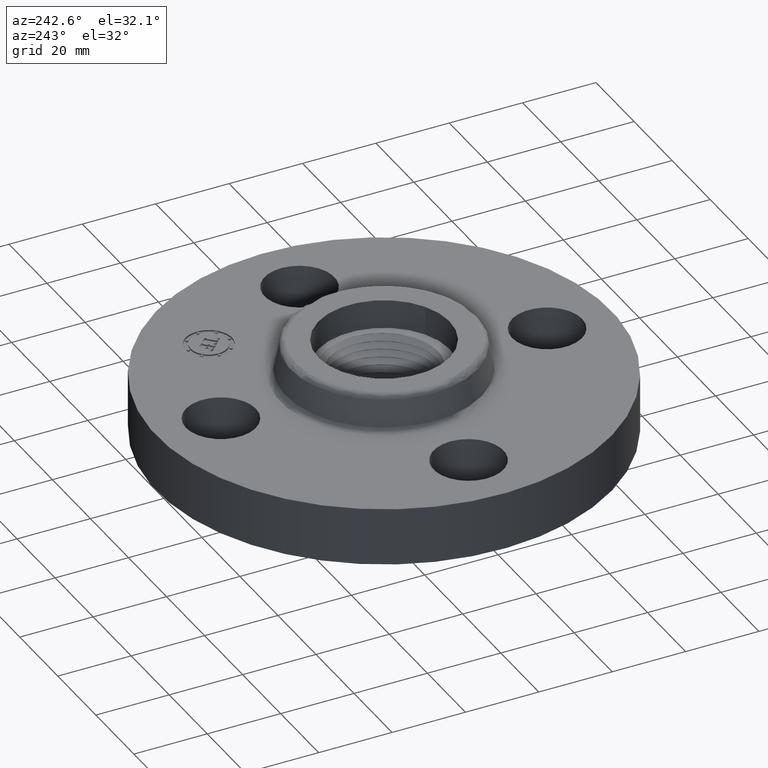
[diagram: clean part render]
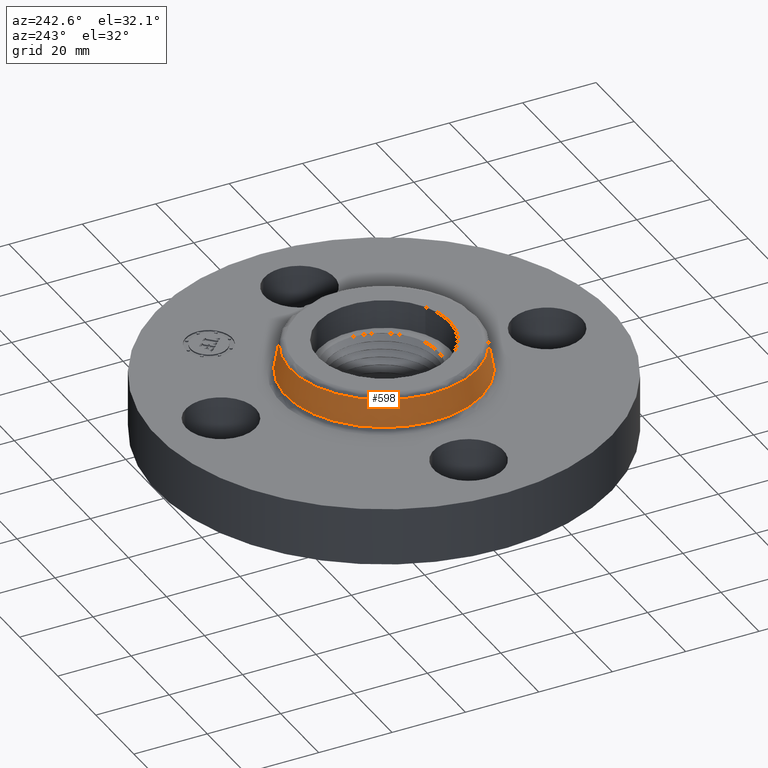
[diagram: same view with one face highlighted and labeled with its STEP entity id]
A machine part, auxiliary view. The second image highlights one B-rep face of the part: STEP entity #598.
In plain terms, the highlighted conical surface has half-angle 10 deg.
Its self-contained STEP definition (entity closure, byte-faithful):
#546=AXIS2_PLACEMENT_3D('Circle Axis2P3D',#544,#545,$) ;
#559=AXIS2_PLACEMENT_3D('Cone Axis2P3D',#556,#557,#558) ;
#589=AXIS2_PLACEMENT_3D('Circle Axis2P3D',#587,#588,$) ;
#517=CARTESIAN_POINT('Vertex',(0.503999699235,0.922565261197,0.669581109343)) ;
#524=CARTESIAN_POINT('Vertex',(-0.503999699235,-0.922565261197,0.669581109343)) ;
#544=CARTESIAN_POINT('Axis2P3D Location',(0.,0.,0.669581109343)) ;
#556=CARTESIAN_POINT('Axis2P3D Location',(0.,0.,0.950418890664)) ;
#561=CARTESIAN_POINT('Line Origine',(0.49212929596,0.90083663375,0.810000000003)) ;
#565=CARTESIAN_POINT('Vertex',(0.480258892685,0.879108006303,0.950418890664)) ;
#572=CARTESIAN_POINT('Vertex',(-0.480258892685,-0.879108006303,0.950418890664)) ;
#575=CARTESIAN_POINT('Line Origine',(-0.49212929596,-0.90083663375,0.810000000003)) ;
#587=CARTESIAN_POINT('Axis2P3D Location',(0.,0.,0.950418890664)) ;
#545=DIRECTION('Axis2P3D Direction',(0.,0.,-0.0393700787402)) ;
#557=DIRECTION('Axis2P3D Direction',(0.,0.,-0.0393700787402)) ;
#558=DIRECTION('Axis2P3D XDirection',(-0.0188750212049,-0.0345504945626,0.)) ;
#562=DIRECTION('Vector Direction',(0.00327761303565,0.00599963041829,-0.03877195878)) ;
#576=DIRECTION('Vector Direction',(-0.00327761303565,-0.00599963041829,-0.03877195878)) ;
#588=DIRECTION('Axis2P3D Direction',(0.,0.,-0.0393700787402)) ;
#563=VECTOR('Line Direction',#562,0.0393700787402) ;
#577=VECTOR('Line Direction',#576,0.0393700787402) ;
#593=ORIENTED_EDGE('',*,*,#548,.F.) ;
#594=ORIENTED_EDGE('',*,*,#579,.T.) ;
#595=ORIENTED_EDGE('',*,*,#591,.T.) ;
#596=ORIENTED_EDGE('',*,*,#567,.F.) ;
#598=ADVANCED_FACE('PartBody',(#597),#560,.T.) ;
#547=CIRCLE('generated circle',#546,1.05125751269) ;
#590=CIRCLE('generated circle',#589,1.00173823464) ;
#560=CONICAL_SURFACE('Cone',#559,1.00173823464,0.174532925199) ;
#548=EDGE_CURVE('',#525,#518,#547,.T.) ;
#567=EDGE_CURVE('',#518,#566,#564,.F.) ;
#579=EDGE_CURVE('',#525,#573,#578,.F.) ;
#591=EDGE_CURVE('',#573,#566,#590,.T.) ;
#592=EDGE_LOOP('',(#593,#594,#595,#596)) ;
#597=FACE_OUTER_BOUND('',#592,.T.) ;
#564=LINE('Line',#561,#563) ;
#578=LINE('Line',#575,#577) ;
#518=VERTEX_POINT('',#517) ;
#525=VERTEX_POINT('',#524) ;
#566=VERTEX_POINT('',#565) ;
#573=VERTEX_POINT('',#572) ;